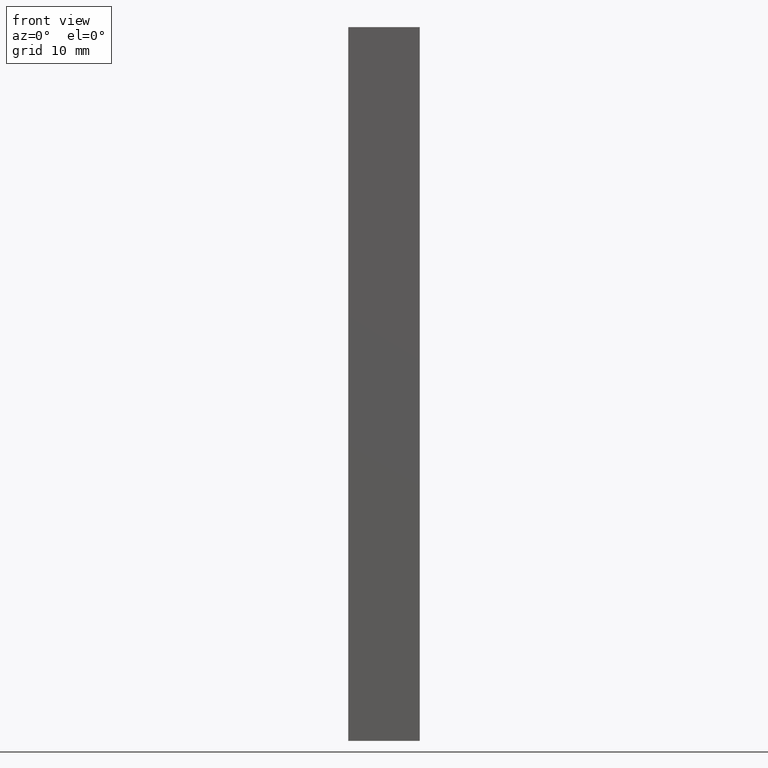
[diagram: clean part render]
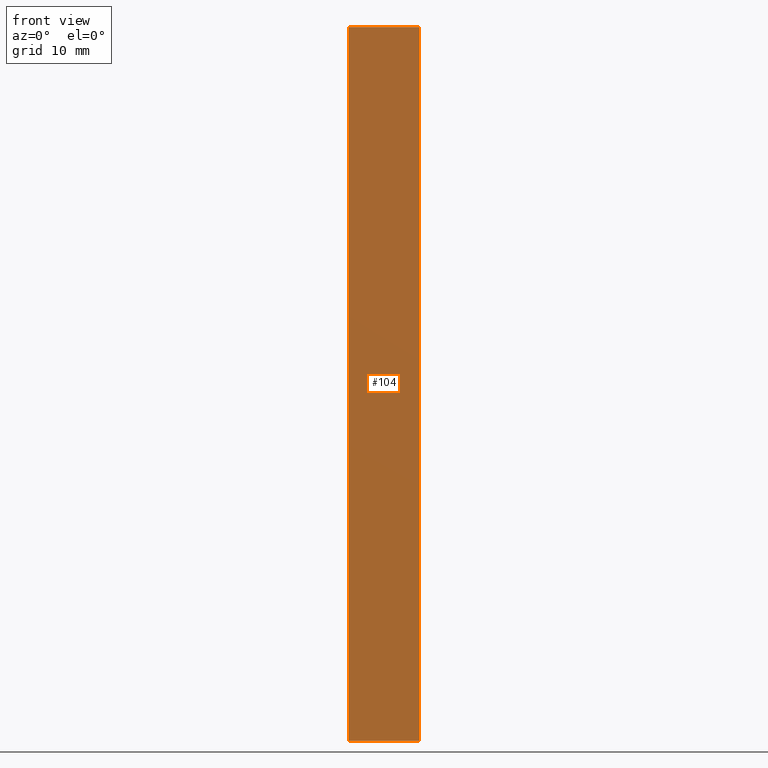
[diagram: same view with one face highlighted and labeled with its STEP entity id]
A machine part, front view. The second image highlights one B-rep face of the part: STEP entity #104.
In plain terms, the highlighted planar face has unit normal (0, -1, 0).
Its self-contained STEP definition (entity closure, byte-faithful):
#21=FACE_OUTER_BOUND('',#27,.T.);
#27=EDGE_LOOP('',(#87,#88,#89,#90));
#32=LINE('',#168,#42);
#36=LINE('',#177,#46);
#39=LINE('',#185,#49);
#40=LINE('',#187,#50);
#42=VECTOR('',#139,10.);
#46=VECTOR('',#147,10.);
#49=VECTOR('',#156,10.);
#50=VECTOR('',#159,10.);
#51=VERTEX_POINT('',#164);
#53=VERTEX_POINT('',#167);
#55=VERTEX_POINT('',#173);
#58=VERTEX_POINT('',#183);
#60=EDGE_CURVE('',#53,#51,#32,.T.);
#65=EDGE_CURVE('',#55,#53,#36,.T.);
#69=EDGE_CURVE('',#51,#58,#39,.T.);
#70=EDGE_CURVE('',#58,#55,#40,.T.);
#87=ORIENTED_EDGE('',*,*,#70,.T.);
#88=ORIENTED_EDGE('',*,*,#65,.T.);
#89=ORIENTED_EDGE('',*,*,#60,.T.);
#90=ORIENTED_EDGE('',*,*,#69,.T.);
#98=PLANE('',#132);
#104=ADVANCED_FACE('',(#21),#98,.T.);
#132=AXIS2_PLACEMENT_3D('',#186,#157,#158);
#139=DIRECTION('',(1.,4.44089209850063E-16,0.));
#147=DIRECTION('',(0.,0.,-1.));
#156=DIRECTION('',(0.,0.,1.));
#157=DIRECTION('center_axis',(4.44089209850063E-16,-1.,0.));
#158=DIRECTION('ref_axis',(0.,0.,-1.));
#159=DIRECTION('',(-1.,-4.44089209850063E-16,0.));
#164=CARTESIAN_POINT('',(5.,-10.,-50.));
#167=CARTESIAN_POINT('',(-5.,-10.,-50.));
#168=CARTESIAN_POINT('',(-5.,-10.,-50.));
#173=CARTESIAN_POINT('',(-5.,-10.,50.));
#177=CARTESIAN_POINT('',(-5.,-10.,0.));
#183=CARTESIAN_POINT('',(5.,-10.,50.));
#185=CARTESIAN_POINT('',(5.,-10.,0.));
#186=CARTESIAN_POINT('Origin',(5.,-10.,0.));
#187=CARTESIAN_POINT('',(-5.,-10.,50.));